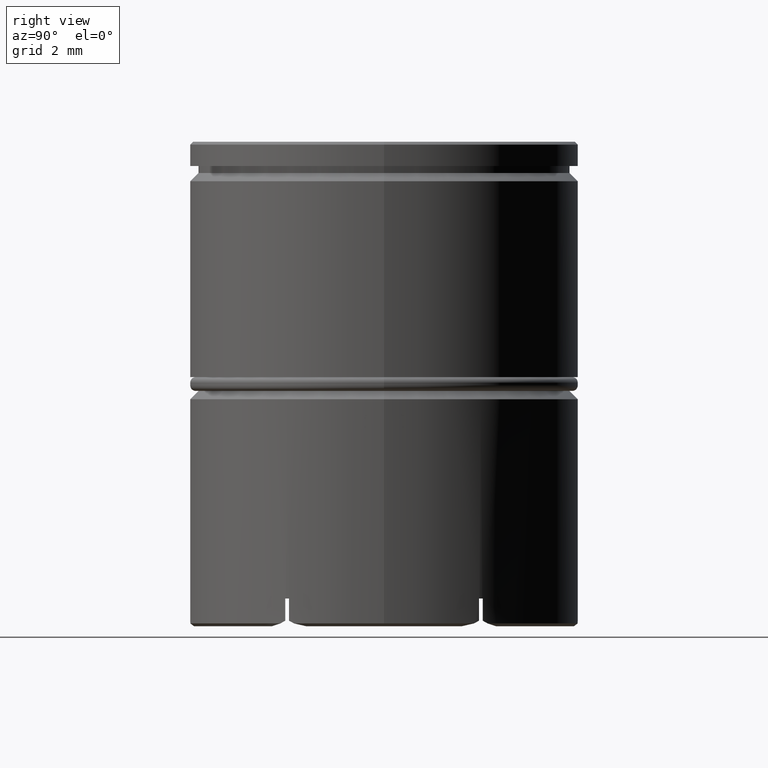
[diagram: clean part render]
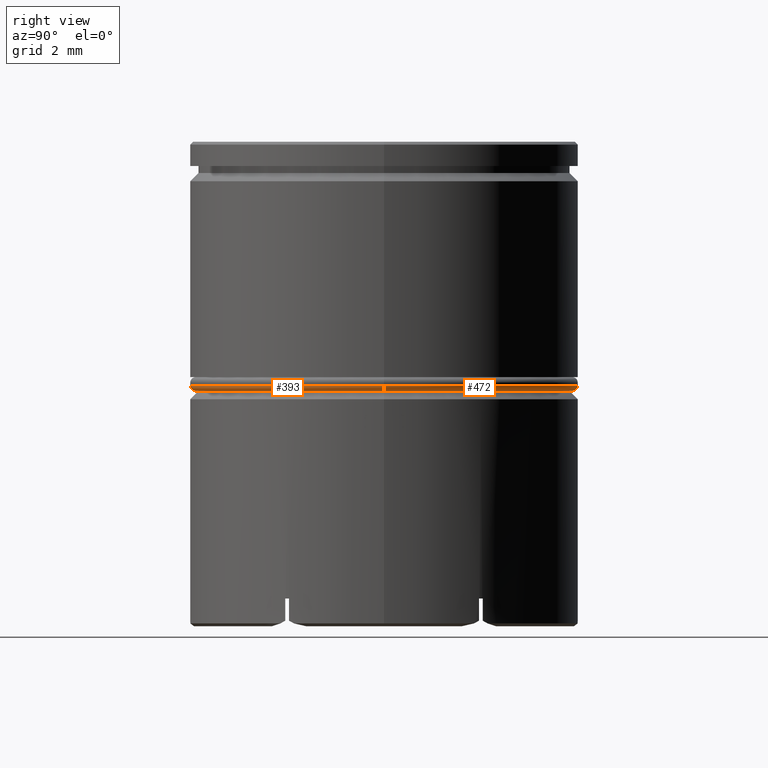
[diagram: same view with one multi-face feature highlighted, each face labeled with its STEP entity id]
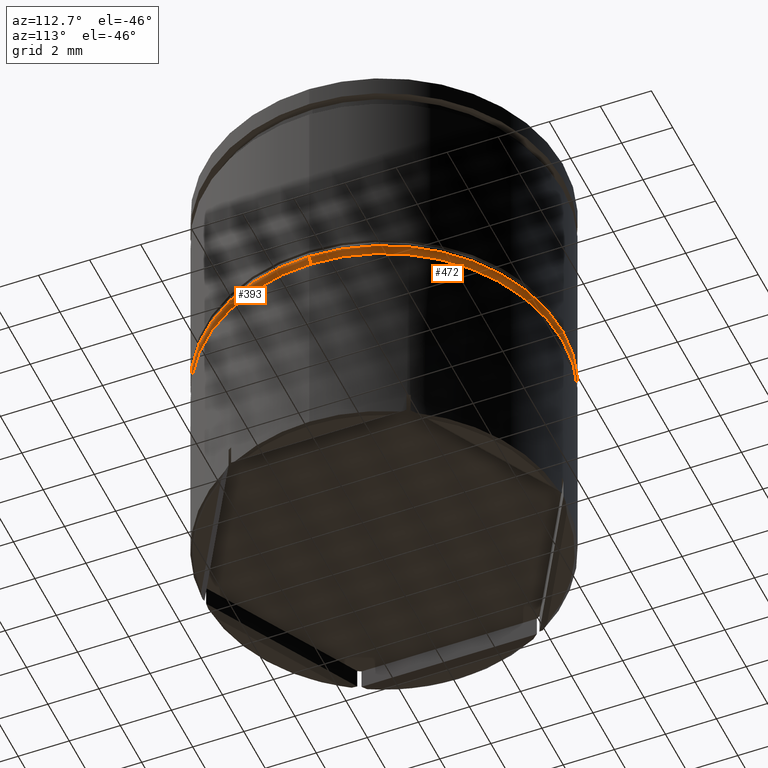
[diagram: same view with one multi-face feature highlighted, each face labeled with its STEP entity id]
A machine part, right view. The highlighted faces form ONE feature: a constant-radius fillet chain: 2 tangent blend faces with common blend radius 0.2 mm. The faces share edges in the B-rep.
A second angle (auxiliary view) of the same feature is appended — it is thin or edge-on in the first view.
Their STEP definitions:
[1] entity #472 (Torus):
#49 = CIRCLE ( 'NONE', #218, 6.800000000000001599 ) ;
#172 = AXIS2_PLACEMENT_3D ( 'NONE', #1563, #1555, #187 ) ;
#187 = DIRECTION ( 'NONE',  ( 1.000000000000000000, 0.000000000000000000, 0.000000000000000000 ) ) ;
#192 = AXIS2_PLACEMENT_3D ( 'NONE', #984, #1066, #1488 ) ;
#218 = AXIS2_PLACEMENT_3D ( 'NONE', #758, #1507, #349 ) ;
#310 = ORIENTED_EDGE ( 'NONE', *, *, #1292, .F. ) ;
#314 = VERTEX_POINT ( 'NONE', #1308 ) ;
#349 = DIRECTION ( 'NONE',  ( 1.000000000000000000, 0.000000000000000000, 0.000000000000000000 ) ) ;
#467 = FACE_OUTER_BOUND ( 'NONE', #655, .T. ) ;
#472 = ADVANCED_FACE ( 'NONE', ( #467 ), #1229, .T. ) ;
#481 = CARTESIAN_POINT ( 'NONE',  ( -7.000000000000000888, 8.572527594031474176E-16, -8.799999999999998934 ) ) ;
#545 = CARTESIAN_POINT ( 'NONE',  ( 7.000000000000000888, 0.000000000000000000, -8.799999999999998934 ) ) ;
#614 = AXIS2_PLACEMENT_3D ( 'NONE', #1199, #1080, #694 ) ;
#655 = EDGE_LOOP ( 'NONE', ( #310, #1163, #1608, #1271 ) ) ;
#694 = DIRECTION ( 'NONE',  ( 0.000000000000000000, 0.000000000000000000, -1.000000000000000000 ) ) ;
#728 = DIRECTION ( 'NONE',  ( 0.000000000000000000, 0.000000000000000000, 1.000000000000000000 ) ) ;
#737 = CARTESIAN_POINT ( 'NONE',  ( 0.000000000000000000, 0.000000000000000000, -8.799999999999998934 ) ) ;
#740 = EDGE_CURVE ( 'NONE', #945, #1505, #1336, .T. ) ;
#758 = CARTESIAN_POINT ( 'NONE',  ( 0.000000000000000000, 0.000000000000000000, -9.000000000000001776 ) ) ;
#819 = CIRCLE ( 'NONE', #192, 0.1999999999999996503 ) ;
#876 = CARTESIAN_POINT ( 'NONE',  ( 6.800000000000001599, 0.000000000000000000, -9.000000000000001776 ) ) ;
#941 = AXIS2_PLACEMENT_3D ( 'NONE', #737, #728, #1370 ) ;
#945 = VERTEX_POINT ( 'NONE', #876 ) ;
#984 = CARTESIAN_POINT ( 'NONE',  ( -6.800000000000001599, 8.327598234202003091E-16, -8.799999999999998934 ) ) ;
#1066 = DIRECTION ( 'NONE',  ( 1.224646799147353207E-16, 1.000000000000000000, -0.000000000000000000 ) ) ;
#1080 = DIRECTION ( 'NONE',  ( 0.000000000000000000, -1.000000000000000000, 0.000000000000000000 ) ) ;
#1163 = ORIENTED_EDGE ( 'NONE', *, *, #1253, .T. ) ;
#1199 = CARTESIAN_POINT ( 'NONE',  ( 6.800000000000001599, 0.000000000000000000, -8.799999999999998934 ) ) ;
#1229 = TOROIDAL_SURFACE ( 'NONE', #941, 6.800000000000001599, 0.2000000000000000111 ) ;
#1253 = EDGE_CURVE ( 'NONE', #314, #1439, #819, .T. ) ;
#1271 = ORIENTED_EDGE ( 'NONE', *, *, #740, .F. ) ;
#1292 = EDGE_CURVE ( 'NONE', #314, #945, #49, .T. ) ;
#1308 = CARTESIAN_POINT ( 'NONE',  ( -6.800000000000001599, 8.450062914116737647E-16, -9.000000000000001776 ) ) ;
#1336 = CIRCLE ( 'NONE', #614, 0.2000000000000005107 ) ;
#1370 = DIRECTION ( 'NONE',  ( 1.000000000000000000, 0.000000000000000000, 0.000000000000000000 ) ) ;
#1439 = VERTEX_POINT ( 'NONE', #481 ) ;
#1488 = DIRECTION ( 'NONE',  ( -1.000000000000000000, 1.224646799147353454E-16, 0.000000000000000000 ) ) ;
#1505 = VERTEX_POINT ( 'NONE', #545 ) ;
#1507 = DIRECTION ( 'NONE',  ( -0.000000000000000000, -0.000000000000000000, -1.000000000000000000 ) ) ;
#1555 = DIRECTION ( 'NONE',  ( 0.000000000000000000, 0.000000000000000000, 1.000000000000000000 ) ) ;
#1563 = CARTESIAN_POINT ( 'NONE',  ( 0.000000000000000000, 0.000000000000000000, -8.799999999999998934 ) ) ;
#1577 = EDGE_CURVE ( 'NONE', #1505, #1439, #1628, .T. ) ;
#1608 = ORIENTED_EDGE ( 'NONE', *, *, #1577, .F. ) ;
#1628 = CIRCLE ( 'NONE', #172, 7.000000000000000888 ) ;
[2] entity #393 (Torus):
#15 = DIRECTION ( 'NONE',  ( 1.000000000000000000, 0.000000000000000000, 0.000000000000000000 ) ) ;
#23 = FACE_OUTER_BOUND ( 'NONE', #879, .T. ) ;
#178 = EDGE_CURVE ( 'NONE', #1439, #1505, #1097, .T. ) ;
#192 = AXIS2_PLACEMENT_3D ( 'NONE', #984, #1066, #1488 ) ;
#314 = VERTEX_POINT ( 'NONE', #1308 ) ;
#393 = ADVANCED_FACE ( 'NONE', ( #23 ), #1227, .T. ) ;
#481 = CARTESIAN_POINT ( 'NONE',  ( -7.000000000000000888, 8.572527594031474176E-16, -8.799999999999998934 ) ) ;
#545 = CARTESIAN_POINT ( 'NONE',  ( 7.000000000000000888, 0.000000000000000000, -8.799999999999998934 ) ) ;
#604 = ORIENTED_EDGE ( 'NONE', *, *, #1253, .F. ) ;
#614 = AXIS2_PLACEMENT_3D ( 'NONE', #1199, #1080, #694 ) ;
#657 = DIRECTION ( 'NONE',  ( 0.000000000000000000, 0.000000000000000000, 1.000000000000000000 ) ) ;
#694 = DIRECTION ( 'NONE',  ( 0.000000000000000000, 0.000000000000000000, -1.000000000000000000 ) ) ;
#712 = ORIENTED_EDGE ( 'NONE', *, *, #740, .T. ) ;
#740 = EDGE_CURVE ( 'NONE', #945, #1505, #1336, .T. ) ;
#819 = CIRCLE ( 'NONE', #192, 0.1999999999999996503 ) ;
#876 = CARTESIAN_POINT ( 'NONE',  ( 6.800000000000001599, 0.000000000000000000, -9.000000000000001776 ) ) ;
#879 = EDGE_LOOP ( 'NONE', ( #604, #1182, #712, #1350 ) ) ;
#944 = AXIS2_PLACEMENT_3D ( 'NONE', #1283, #1158, #1138 ) ;
#945 = VERTEX_POINT ( 'NONE', #876 ) ;
#984 = CARTESIAN_POINT ( 'NONE',  ( -6.800000000000001599, 8.327598234202003091E-16, -8.799999999999998934 ) ) ;
#1066 = DIRECTION ( 'NONE',  ( 1.224646799147353207E-16, 1.000000000000000000, -0.000000000000000000 ) ) ;
#1080 = DIRECTION ( 'NONE',  ( 0.000000000000000000, -1.000000000000000000, 0.000000000000000000 ) ) ;
#1097 = CIRCLE ( 'NONE', #1183, 7.000000000000000888 ) ;
#1138 = DIRECTION ( 'NONE',  ( 1.000000000000000000, 0.000000000000000000, 0.000000000000000000 ) ) ;
#1148 = CARTESIAN_POINT ( 'NONE',  ( 0.000000000000000000, 0.000000000000000000, -8.799999999999998934 ) ) ;
#1158 = DIRECTION ( 'NONE',  ( -0.000000000000000000, -0.000000000000000000, -1.000000000000000000 ) ) ;
#1173 = CARTESIAN_POINT ( 'NONE',  ( 0.000000000000000000, 0.000000000000000000, -8.799999999999998934 ) ) ;
#1182 = ORIENTED_EDGE ( 'NONE', *, *, #1369, .F. ) ;
#1183 = AXIS2_PLACEMENT_3D ( 'NONE', #1148, #1412, #15 ) ;
#1199 = CARTESIAN_POINT ( 'NONE',  ( 6.800000000000001599, 0.000000000000000000, -8.799999999999998934 ) ) ;
#1227 = TOROIDAL_SURFACE ( 'NONE', #1441, 6.800000000000001599, 0.2000000000000000111 ) ;
#1235 = CIRCLE ( 'NONE', #944, 6.800000000000001599 ) ;
#1253 = EDGE_CURVE ( 'NONE', #314, #1439, #819, .T. ) ;
#1283 = CARTESIAN_POINT ( 'NONE',  ( 0.000000000000000000, 0.000000000000000000, -9.000000000000001776 ) ) ;
#1308 = CARTESIAN_POINT ( 'NONE',  ( -6.800000000000001599, 8.450062914116737647E-16, -9.000000000000001776 ) ) ;
#1336 = CIRCLE ( 'NONE', #614, 0.2000000000000005107 ) ;
#1350 = ORIENTED_EDGE ( 'NONE', *, *, #178, .F. ) ;
#1369 = EDGE_CURVE ( 'NONE', #945, #314, #1235, .T. ) ;
#1412 = DIRECTION ( 'NONE',  ( 0.000000000000000000, 0.000000000000000000, 1.000000000000000000 ) ) ;
#1439 = VERTEX_POINT ( 'NONE', #481 ) ;
#1441 = AXIS2_PLACEMENT_3D ( 'NONE', #1173, #657, #1549 ) ;
#1488 = DIRECTION ( 'NONE',  ( -1.000000000000000000, 1.224646799147353454E-16, 0.000000000000000000 ) ) ;
#1505 = VERTEX_POINT ( 'NONE', #545 ) ;
#1549 = DIRECTION ( 'NONE',  ( 1.000000000000000000, 0.000000000000000000, 0.000000000000000000 ) ) ;